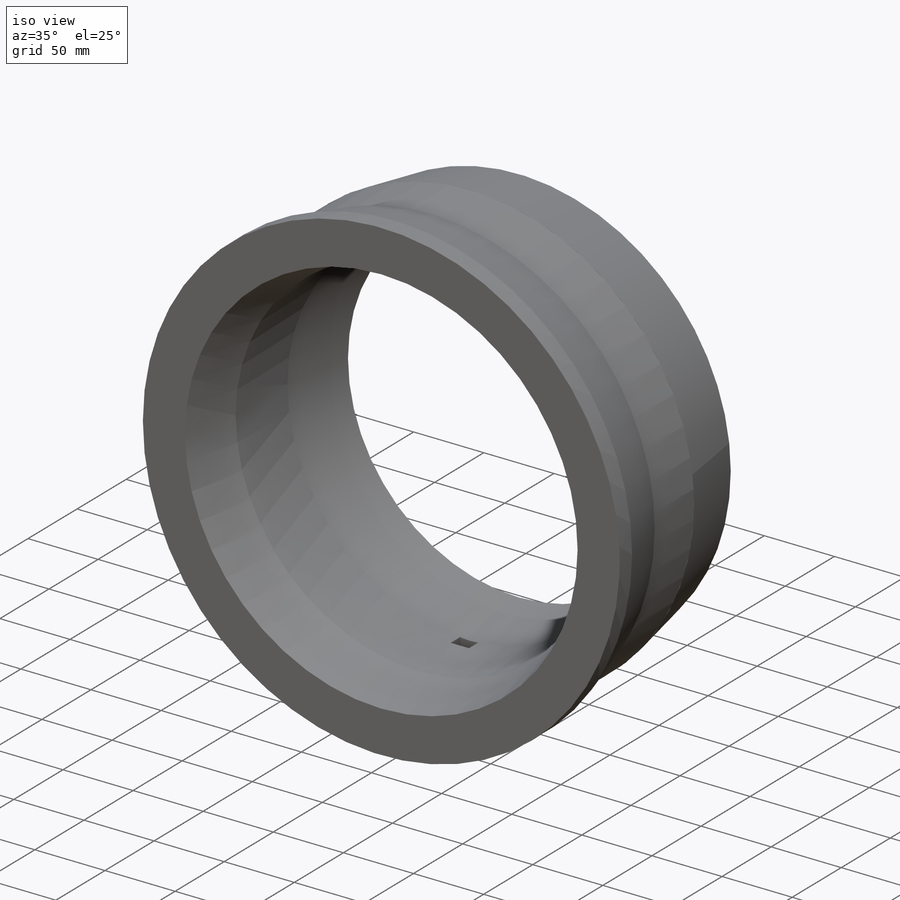
[diagram: iso view]
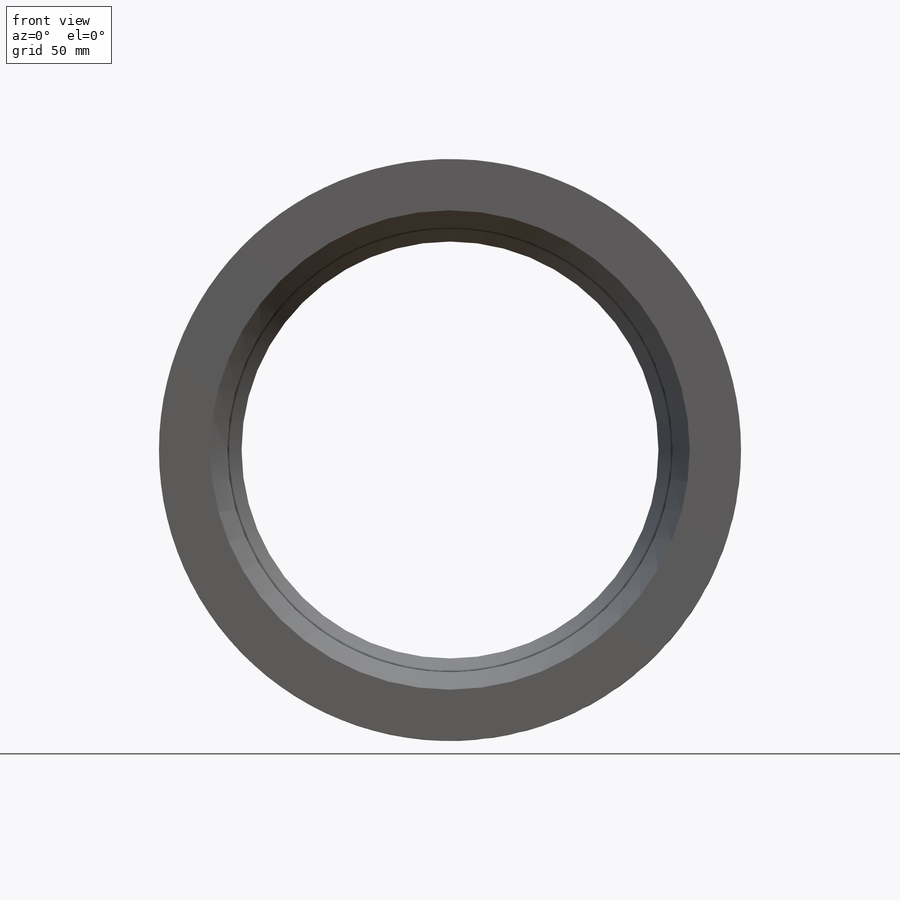
[diagram: front view]
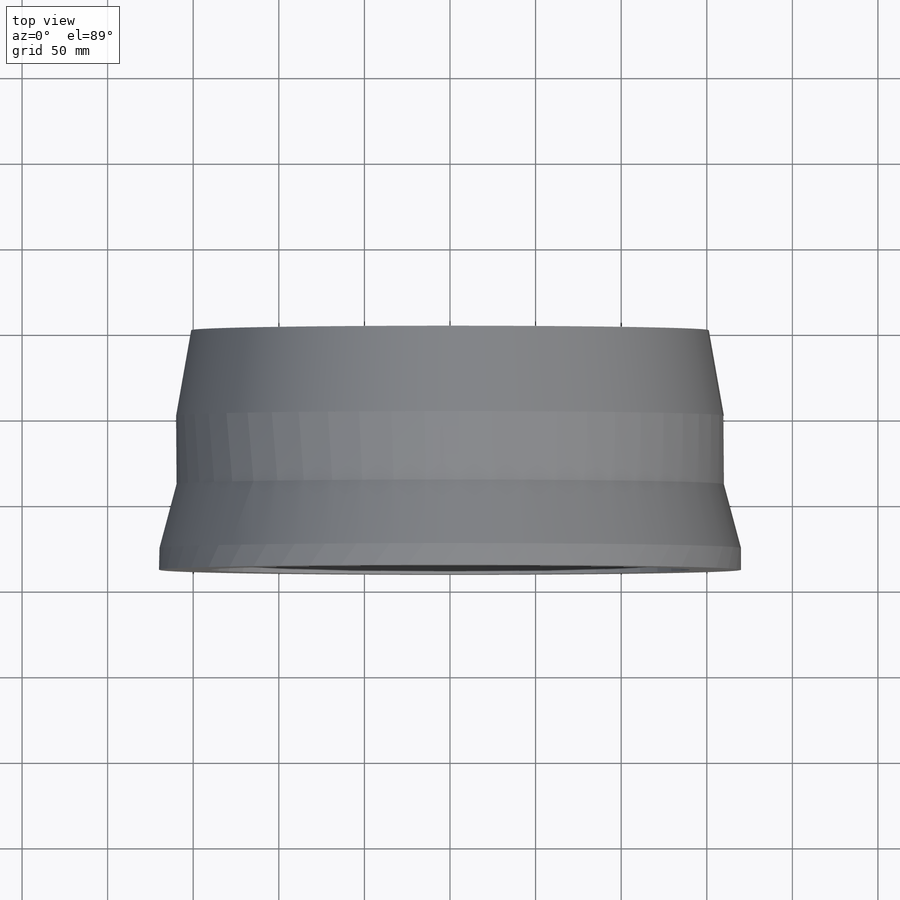
[diagram: top view]
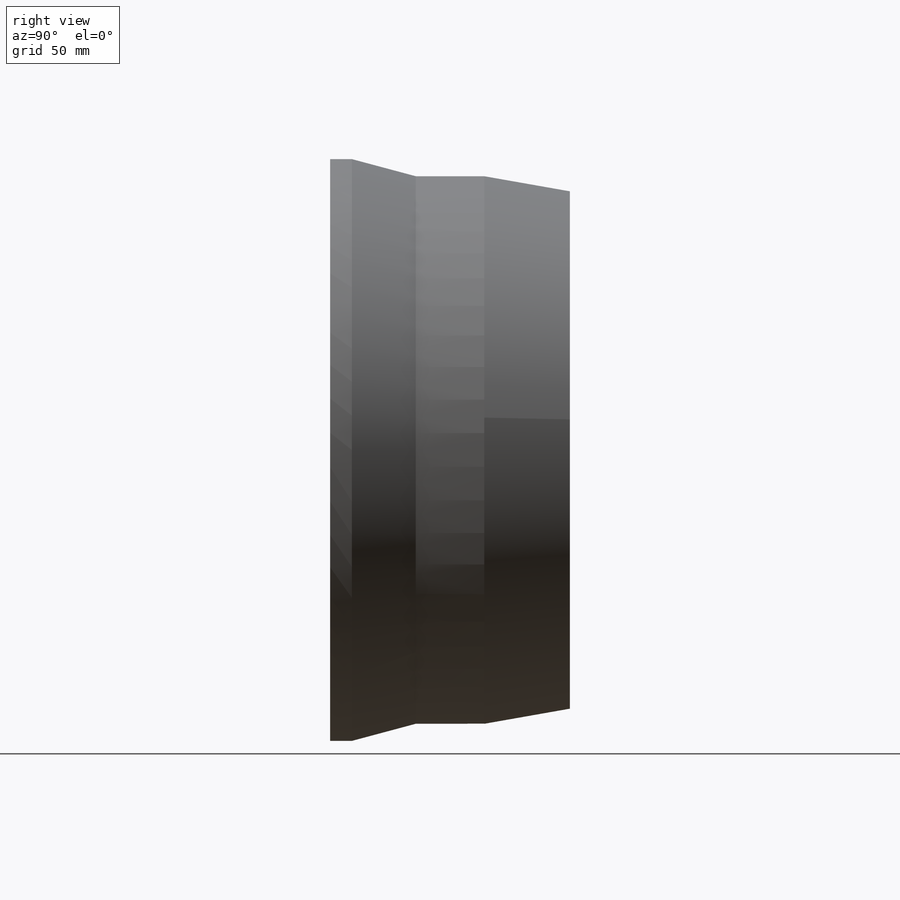
[diagram: right view]
SOLIDWORKS PART (.sldprt)
format: sldprt  version: not decoded by parser v0  size: 247,808 bytes
history: native  units: mm
features: extrude x8, sketch x4, chamfer x4, plane x3, material x1, cut_extrude x1 (+9 scaffold rows collapsed)
feature tree (30):
  scaffold x9  (default folders/planes/origin — collapsed)
  material  "Matériau <non spécifié>"
  plane  "Plan de face"
  plane  "Plan de dessus"
  plane  "Plan de droite"
  sketch  "Esquisse1"  dims[c1.D1=26.0mm c1.D2=320.0mm c2.D1=260.0mm]
  extrude  "Boss.-Extru.1"  Depth=40mm
  extrude  "ModelUUID"  [1 undecoded]
  extrude  "UUID"  [1 undecoded]
  extrude  "ModelUUID"  [1 undecoded]
  extrude  "UUID"  [1 undecoded]
  extrude  "ModelUUID"  [1 undecoded]
  sketch  "Esquisse2"  dims[D1=340.0mm D2=260.0mm]
  extrude  "Boss.-Extru.2"  Depth=50mm
  sketch  "Esquisse3"  dims[D1=240.0mm D2=320.0mm]
  extrude  "Boss.-Extru.3"  Depth=50mm
  sketch  "Esquisse4"  dims[D1=13.0mm D2=10.0mm]
  cut_extrude  "Enlèv. mat.-Extru.1"  [1 undecoded]
  chamfer  "Chanfrein1"  Distance=50mm Angle=10deg
  chamfer  "Chanfrein2"  Distance=60mm Angle=10deg
  chamfer  "Chanfrein5"  Distance=10mm Angle=75deg
  chamfer  "Chanfrein6"  Distance=10mm Angle=75deg
decode coverage: 11 of 17 modeling features carry decoded parameters
note: 6 parameter values undecoded
summary: no parameter record found for 6 features
note: suppression state not decoded; provenance and decode notes live in map.json
